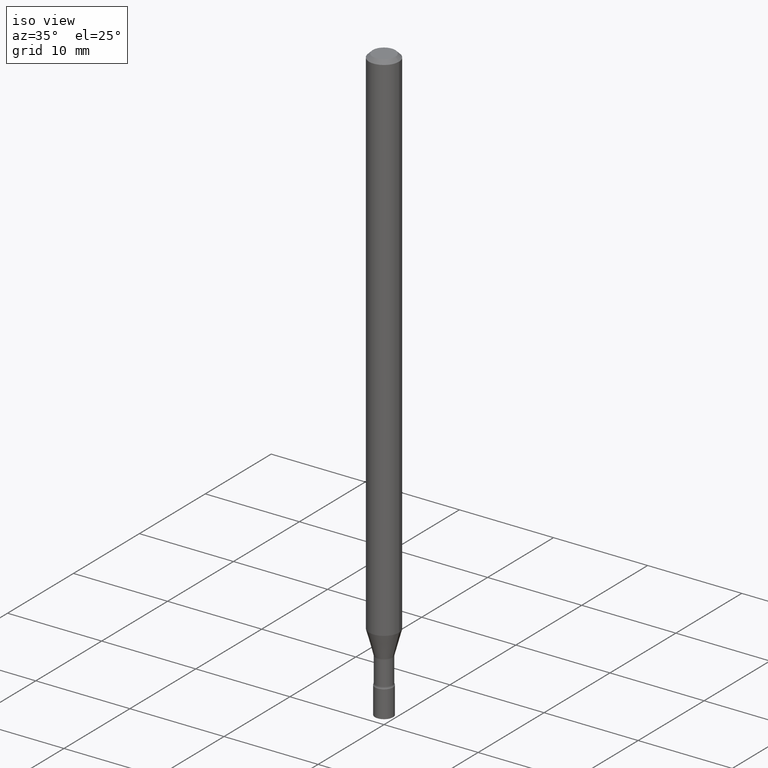
[diagram: clean part render]
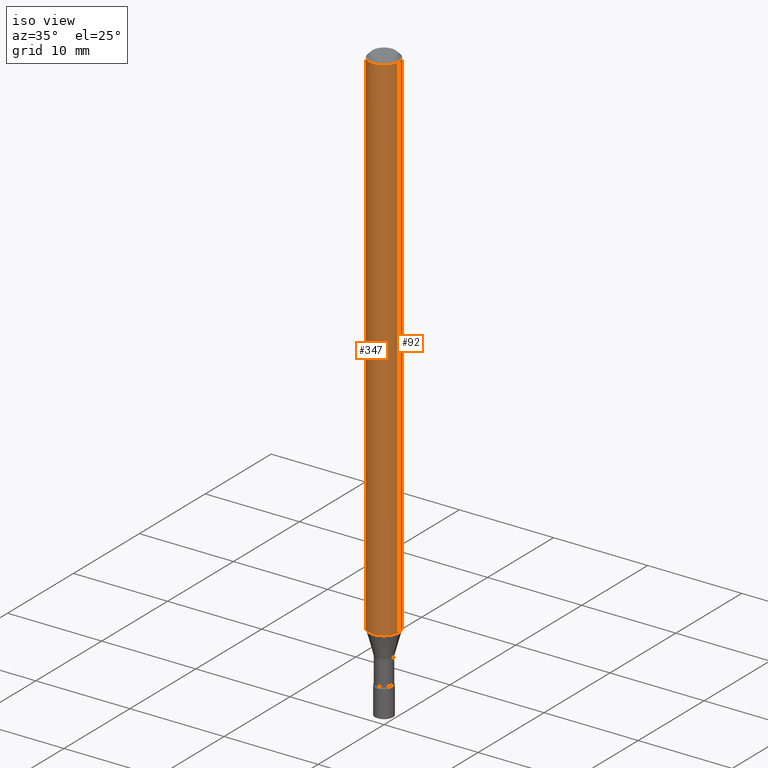
[diagram: same view with one multi-face feature highlighted, each face labeled with its STEP entity id]
A machine part, iso view. The highlighted faces form ONE feature: a constant-radius fillet chain: 2 tangent blend faces with common blend radius 1.5875 mm. The faces share edges in the B-rep.
Their STEP definitions:
[1] entity #347 (Cylinder):
#5 = EDGE_CURVE ( 'NONE', #431, #34, #235, .T. ) ;
#23 = CARTESIAN_POINT ( 'NONE',  ( 0.000000000000000000, 0.000000000000000000, 0.000000000000000000 ) ) ;
#34 = VERTEX_POINT ( 'NONE', #82 ) ;
#39 = VERTEX_POINT ( 'NONE', #394 ) ;
#47 = DIRECTION ( 'NONE',  ( 1.000000000000000000, -6.982962677686262766E-15, 0.000000000000000000 ) ) ;
#64 = EDGE_CURVE ( 'NONE', #431, #348, #390, .T. ) ;
#67 = DIRECTION ( 'NONE',  ( -2.445468806185136877E-29, 3.491481338843145188E-15, 1.000000000000000000 ) ) ;
#78 = EDGE_LOOP ( 'NONE', ( #358, #270, #181, #257 ) ) ;
#82 = CARTESIAN_POINT ( 'NONE',  ( -0.06250000000000000000, -3.376117917278303760E-15, -0.01500000000000003067 ) ) ;
#95 = CARTESIAN_POINT ( 'NONE',  ( 3.668203209277712094E-31, -5.237222008264728876E-17, -0.01500000000000003067 ) ) ;
#122 = DIRECTION ( 'NONE',  ( 1.000000000000000000, -6.982962677686266711E-15, 4.876176775795935793E-29 ) ) ;
#123 = DIRECTION ( 'NONE',  ( -2.445468806185136597E-29, 3.491481338843145583E-15, 1.000000000000000000 ) ) ;
#124 = DIRECTION ( 'NONE',  ( -2.445468806185136597E-29, 3.491481338843145583E-15, 1.000000000000000000 ) ) ;
#147 = CARTESIAN_POINT ( 'NONE',  ( -0.06250000000000000000, -7.143952824324022663E-15, -2.173301615493748784 ) ) ;
#150 = CYLINDRICAL_SURFACE ( 'NONE', #427, 0.06250000000000000000 ) ;
#181 = ORIENTED_EDGE ( 'NONE', *, *, #326, .T. ) ;
#235 = LINE ( 'NONE', #321, #242 ) ;
#242 = VECTOR ( 'NONE', #479, 39.37007874015748143 ) ;
#257 = ORIENTED_EDGE ( 'NONE', *, *, #284, .F. ) ;
#270 = ORIENTED_EDGE ( 'NONE', *, *, #64, .T. ) ;
#277 = CIRCLE ( 'NONE', #346, 0.06250000000000000000 ) ;
#284 = EDGE_CURVE ( 'NONE', #34, #39, #277, .T. ) ;
#321 = CARTESIAN_POINT ( 'NONE',  ( -0.06250000000000000000, 4.440892098500626162E-16, -3.074334431409316114E-30 ) ) ;
#326 = EDGE_CURVE ( 'NONE', #348, #39, #339, .T. ) ;
#336 = VECTOR ( 'NONE', #67, 39.37007874015748143 ) ;
#339 = LINE ( 'NONE', #341, #336 ) ;
#341 = CARTESIAN_POINT ( 'NONE',  ( 0.06250000000000000000, -4.364351673553916694E-16, 3.047610484872459871E-30 ) ) ;
#346 = AXIS2_PLACEMENT_3D ( 'NONE', #95, #452, #448 ) ;
#347 = ADVANCED_FACE ( 'NONE', ( #370 ), #150, .T. ) ;
#348 = VERTEX_POINT ( 'NONE', #352 ) ;
#352 = CARTESIAN_POINT ( 'NONE',  ( 0.06250000000000000000, -8.024477201529475370E-15, -2.173301615493748784 ) ) ;
#358 = ORIENTED_EDGE ( 'NONE', *, *, #5, .F. ) ;
#370 = FACE_OUTER_BOUND ( 'NONE', #78, .T. ) ;
#390 = CIRCLE ( 'NONE', #458, 0.06250000000000000000 ) ;
#394 = CARTESIAN_POINT ( 'NONE',  ( 0.06250000000000000000, -4.888073874380389458E-16, -0.01500000000000003067 ) ) ;
#427 = AXIS2_PLACEMENT_3D ( 'NONE', #23, #124, #122 ) ;
#431 = VERTEX_POINT ( 'NONE', #147 ) ;
#448 = DIRECTION ( 'NONE',  ( 1.000000000000000000, -6.982962677686266711E-15, 0.000000000000000000 ) ) ;
#452 = DIRECTION ( 'NONE',  ( -2.445468806185136597E-29, 3.491481338843145583E-15, 1.000000000000000000 ) ) ;
#458 = AXIS2_PLACEMENT_3D ( 'NONE', #472, #123, #47 ) ;
#472 = CARTESIAN_POINT ( 'NONE',  ( 5.314741307121726044E-29, -7.588042034174085279E-15, -2.173301615493748784 ) ) ;
#479 = DIRECTION ( 'NONE',  ( -2.445468806185136877E-29, 3.491481338843145188E-15, 1.000000000000000000 ) ) ;
[2] entity #92 (Cylinder):
#5 = EDGE_CURVE ( 'NONE', #431, #34, #235, .T. ) ;
#8 = ORIENTED_EDGE ( 'NONE', *, *, #185, .T. ) ;
#9 = CIRCLE ( 'NONE', #187, 0.06250000000000000000 ) ;
#27 = DIRECTION ( 'NONE',  ( -2.445468806185136597E-29, 3.491481338843145583E-15, 1.000000000000000000 ) ) ;
#34 = VERTEX_POINT ( 'NONE', #82 ) ;
#39 = VERTEX_POINT ( 'NONE', #394 ) ;
#41 = CARTESIAN_POINT ( 'NONE',  ( 5.314741307121726044E-29, -7.588042034174085279E-15, -2.173301615493748784 ) ) ;
#53 = FACE_OUTER_BOUND ( 'NONE', #305, .T. ) ;
#67 = DIRECTION ( 'NONE',  ( -2.445468806185136877E-29, 3.491481338843145188E-15, 1.000000000000000000 ) ) ;
#82 = CARTESIAN_POINT ( 'NONE',  ( -0.06250000000000000000, -3.376117917278303760E-15, -0.01500000000000003067 ) ) ;
#92 = ADVANCED_FACE ( 'NONE', ( #53 ), #320, .T. ) ;
#103 = ORIENTED_EDGE ( 'NONE', *, *, #326, .F. ) ;
#110 = DIRECTION ( 'NONE',  ( -2.445468806185136597E-29, 3.491481338843145583E-15, 1.000000000000000000 ) ) ;
#130 = DIRECTION ( 'NONE',  ( -2.445468806185136597E-29, 3.491481338843145583E-15, 1.000000000000000000 ) ) ;
#147 = CARTESIAN_POINT ( 'NONE',  ( -0.06250000000000000000, -7.143952824324022663E-15, -2.173301615493748784 ) ) ;
#159 = DIRECTION ( 'NONE',  ( 1.000000000000000000, -6.982962677686266711E-15, 0.000000000000000000 ) ) ;
#172 = EDGE_CURVE ( 'NONE', #39, #34, #9, .T. ) ;
#185 = EDGE_CURVE ( 'NONE', #348, #431, #209, .T. ) ;
#187 = AXIS2_PLACEMENT_3D ( 'NONE', #411, #27, #159 ) ;
#208 = CARTESIAN_POINT ( 'NONE',  ( 0.000000000000000000, 0.000000000000000000, 0.000000000000000000 ) ) ;
#209 = CIRCLE ( 'NONE', #354, 0.06250000000000000000 ) ;
#227 = DIRECTION ( 'NONE',  ( 1.000000000000000000, -6.982962677686262766E-15, 0.000000000000000000 ) ) ;
#235 = LINE ( 'NONE', #321, #242 ) ;
#242 = VECTOR ( 'NONE', #479, 39.37007874015748143 ) ;
#281 = DIRECTION ( 'NONE',  ( 1.000000000000000000, -6.982962677686266711E-15, 4.876176775795935793E-29 ) ) ;
#305 = EDGE_LOOP ( 'NONE', ( #8, #413, #351, #103 ) ) ;
#320 = CYLINDRICAL_SURFACE ( 'NONE', #412, 0.06250000000000000000 ) ;
#321 = CARTESIAN_POINT ( 'NONE',  ( -0.06250000000000000000, 4.440892098500626162E-16, -3.074334431409316114E-30 ) ) ;
#326 = EDGE_CURVE ( 'NONE', #348, #39, #339, .T. ) ;
#336 = VECTOR ( 'NONE', #67, 39.37007874015748143 ) ;
#339 = LINE ( 'NONE', #341, #336 ) ;
#341 = CARTESIAN_POINT ( 'NONE',  ( 0.06250000000000000000, -4.364351673553916694E-16, 3.047610484872459871E-30 ) ) ;
#348 = VERTEX_POINT ( 'NONE', #352 ) ;
#351 = ORIENTED_EDGE ( 'NONE', *, *, #172, .F. ) ;
#352 = CARTESIAN_POINT ( 'NONE',  ( 0.06250000000000000000, -8.024477201529475370E-15, -2.173301615493748784 ) ) ;
#354 = AXIS2_PLACEMENT_3D ( 'NONE', #41, #110, #227 ) ;
#394 = CARTESIAN_POINT ( 'NONE',  ( 0.06250000000000000000, -4.888073874380389458E-16, -0.01500000000000003067 ) ) ;
#411 = CARTESIAN_POINT ( 'NONE',  ( 3.668203209277712094E-31, -5.237222008264728876E-17, -0.01500000000000003067 ) ) ;
#412 = AXIS2_PLACEMENT_3D ( 'NONE', #208, #130, #281 ) ;
#413 = ORIENTED_EDGE ( 'NONE', *, *, #5, .T. ) ;
#431 = VERTEX_POINT ( 'NONE', #147 ) ;
#479 = DIRECTION ( 'NONE',  ( -2.445468806185136877E-29, 3.491481338843145188E-15, 1.000000000000000000 ) ) ;